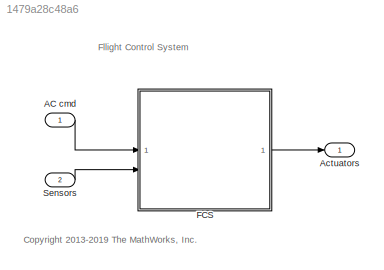
MODEL slx_1479a28c48a6
KIND model
CONFIG AbsTol = auto
CONFIG EnableMultiTasking = on
CONFIG FixedStep = Ts
CONFIG MaxStep = auto
CONFIG MinStep = auto
CONFIG RelTol = 1e-3
CONFIG SampleTimeConstraint = Unconstrained
CONFIG SolverName = ode3
CONFIG StartTime = 0
CONFIG StopTime = 10.0
BLOCK [Inport] AC cmd
  BusOutputAsStruct = on
  OutDataTypeStr = Bus: CommandBus
BLOCK [Outport] Actuators
  VectorParamsAs1DForOutWhenUnconnected = off
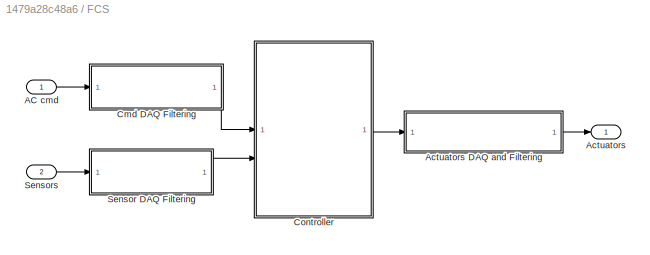
BLOCK [SubSystem] FCS
  TreatAsAtomicUnit = on
BLOCK [Inport] FCS/AC cmd
BLOCK [Outport] FCS/Actuators
  VectorParamsAs1DForOutWhenUnconnected = off
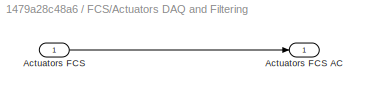
BLOCK [SubSystem] FCS/Actuators DAQ and Filtering
BLOCK [Inport] FCS/Actuators DAQ and Filtering/Actuators FCS
BLOCK [Outport] FCS/Actuators DAQ and Filtering/Actuators FCS AC
  VectorParamsAs1DForOutWhenUnconnected = off
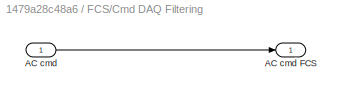
BLOCK [SubSystem] FCS/Cmd DAQ Filtering
BLOCK [Inport] FCS/Cmd DAQ Filtering/AC cmd
BLOCK [Outport] FCS/Cmd DAQ Filtering/AC cmd FCS
  VectorParamsAs1DForOutWhenUnconnected = off
BLOCK [ModelReference] FCS/Controller
  ModelNameDialog = flightController.slx
  ModelReferenceVersion = 11.2
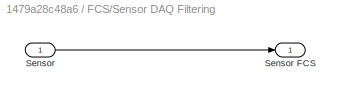
BLOCK [SubSystem] FCS/Sensor DAQ Filtering
BLOCK [Inport] FCS/Sensor DAQ Filtering/Sensor
BLOCK [Outport] FCS/Sensor DAQ Filtering/Sensor FCS
  VectorParamsAs1DForOutWhenUnconnected = off
BLOCK [Inport] FCS/Sensors
  Port = 2
BLOCK [Inport] Sensors
  BusOutputAsStruct = on
  OutDataTypeStr = Bus: SensorsBus
  Port = 2
ANNOTATION (root): <copyright redacted>
ANNOTATION (root): Fllight Control System
LINE AC cmd:1 -> FCS:1
LINE FCS/AC cmd:1 -> FCS/Cmd DAQ Filtering:1
LINE FCS/Actuators DAQ and Filtering/Actuators FCS:1 -> FCS/Actuators DAQ and Filtering/Actuators FCS AC:1
LINE FCS/Actuators DAQ and Filtering:1 -> FCS/Actuators:1
LINE FCS/Cmd DAQ Filtering/AC cmd:1 -> FCS/Cmd DAQ Filtering/AC cmd FCS:1
LINE FCS/Cmd DAQ Filtering:1 -> FCS/Controller:1
LINE FCS/Controller:1 -> FCS/Actuators DAQ and Filtering:1
LINE FCS/Sensor DAQ Filtering/Sensor:1 -> FCS/Sensor DAQ Filtering/Sensor FCS:1
LINE FCS/Sensor DAQ Filtering:1 -> FCS/Controller:2
LINE FCS/Sensors:1 -> FCS/Sensor DAQ Filtering:1
LINE FCS:1 -> Actuators:1
LINE Sensors:1 -> FCS:2
